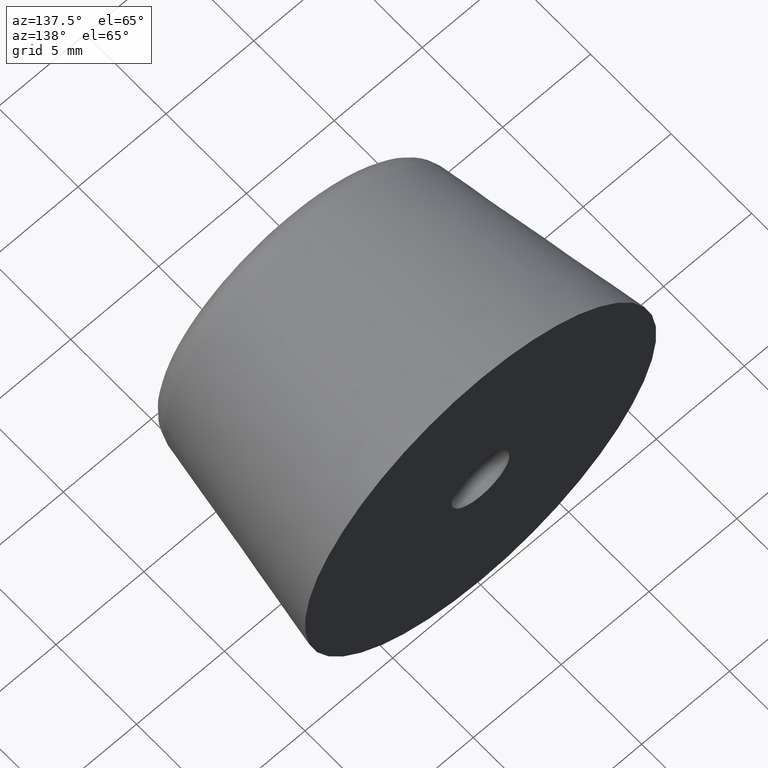
[diagram: clean part render]
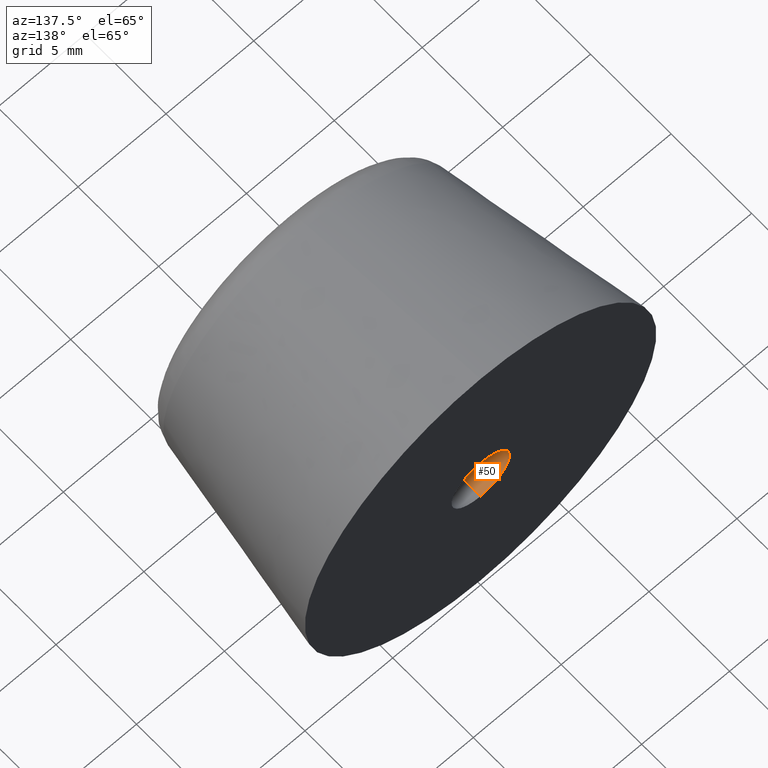
[diagram: same view with one face highlighted and labeled with its STEP entity id]
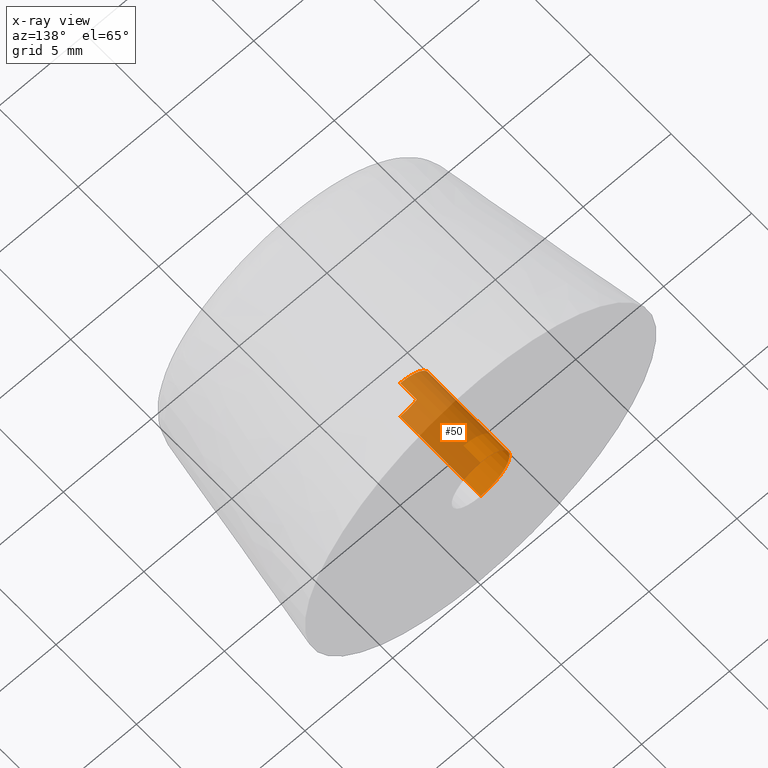
[diagram: x-ray of the same camera — body ghosted, the highlighted face saturated]
A machine part, auxiliary view. The second image highlights one B-rep face of the part: STEP entity #50.
The next image is the same camera in x-ray: the body ghosted, the highlighted face saturated — about 73% of this face is hidden behind the body in this view.
In plain terms, the highlighted cylindrical surface (partial cylindrical patch) has radius 1.65 mm, axis along (-0, 1, 0).
Its self-contained STEP definition (entity closure, byte-faithful):
#50=ADVANCED_FACE('',(#155),#154,.F.);
#154=CYLINDRICAL_SURFACE('',#274,1.65000000000E+00);
#155=FACE_OUTER_BOUND('',#275,.T.);
#271=CARTESIAN_POINT('',(-1.06581410364E-14,0.00000000000E+00,0.00000000000E+00));
#272=DIRECTION('',(-0.00000000000E+00,1.00000000000E+00,0.00000000000E+00));
#273=DIRECTION('',(-0.00000000000E+00,-0.00000000000E+00,1.00000000000E+00));
#274=AXIS2_PLACEMENT_3D('',#271,#272,#273);
#275=EDGE_LOOP('',(#316,#317,#318,#319));
#316=ORIENTED_EDGE('',*,*,#331,.F.);
#317=ORIENTED_EDGE('',*,*,#340,.F.);
#318=ORIENTED_EDGE('',*,*,#322,.T.);
#319=ORIENTED_EDGE('',*,*,#341,.T.);
#322=EDGE_CURVE('',#356,#357,#358,.T.);
#331=EDGE_CURVE('',#413,#412,#420,.T.);
#340=EDGE_CURVE('',#356,#413,#476,.T.);
#341=EDGE_CURVE('',#357,#412,#482,.T.);
#356=VERTEX_POINT('',#498);
#357=VERTEX_POINT('',#499);
#358=CIRCLE('',#503,1.65000000000E+00);
#412=VERTEX_POINT('',#538);
#413=VERTEX_POINT('',#539);
#420=CIRCLE('',#547,1.65000000000E+00);
#476=(BOUNDED_CURVE() B_SPLINE_CURVE(1,(#574,#575),.UNSPECIFIED.,.F.,.F.) B_SPLINE_CURVE_WITH_KNOTS((2,2),(8.33333283663E-02,9.16666663731E-01),.UNSPECIFIED.) CURVE() GEOMETRIC_REPRESENTATION_ITEM() RATIONAL_B_SPLINE_CURVE((1.00000000000E+00,1.00000000000E+00)) REPRESENTATION_ITEM('') );
#482=(BOUNDED_CURVE() B_SPLINE_CURVE(1,(#576,#577),.UNSPECIFIED.,.F.,.F.) B_SPLINE_CURVE_WITH_KNOTS((2,2),(8.33333333333E-02,9.16666666667E-01),.UNSPECIFIED.) CURVE() GEOMETRIC_REPRESENTATION_ITEM() RATIONAL_B_SPLINE_CURVE((7.50000000000E-01,7.50000000000E-01)) REPRESENTATION_ITEM('') );
#498=CARTESIAN_POINT('',(-1.06581410364E-14,-5.00000000000E+00,1.65000000000E+00));
#499=CARTESIAN_POINT('',(-1.06581410364E-14,-5.00000000000E+00,-1.65000000000E+00));
#500=CARTESIAN_POINT('',(-1.06581410364E-14,-5.00000000000E+00,0.00000000000E+00));
#501=DIRECTION('',(0.00000000000E+00,-1.00000000000E+00,-0.00000000000E+00));
#502=DIRECTION('',(-1.22460635382E-16,0.00000000000E+00,-1.00000000000E+00));
#503=AXIS2_PLACEMENT_3D('',#500,#501,#502);
#538=CARTESIAN_POINT('',(-1.06581410364E-14,0.00000000000E+00,-1.65000000000E+00));
#539=CARTESIAN_POINT('',(-1.06581410364E-14,0.00000000000E+00,1.65000000000E+00));
#544=CARTESIAN_POINT('',(-1.06581410364E-14,0.00000000000E+00,0.00000000000E+00));
#545=DIRECTION('',(0.00000000000E+00,-1.00000000000E+00,-0.00000000000E+00));
#546=DIRECTION('',(-1.22460635382E-16,0.00000000000E+00,-1.00000000000E+00));
#547=AXIS2_PLACEMENT_3D('',#544,#545,#546);
#574=CARTESIAN_POINT('',(-1.06581410364E-14,-5.00000002980E+00,1.65000000000E+00));
#575=CARTESIAN_POINT('',(-1.06581410364E-14,-1.76110085959E-08,1.65000000000E+00));
#576=CARTESIAN_POINT('',(-1.07321559047E-14,-5.00000000000E+00,-1.65000000000E+00));
#577=CARTESIAN_POINT('',(-1.07321559047E-14,3.70074341542E-16,-1.65000000000E+00));